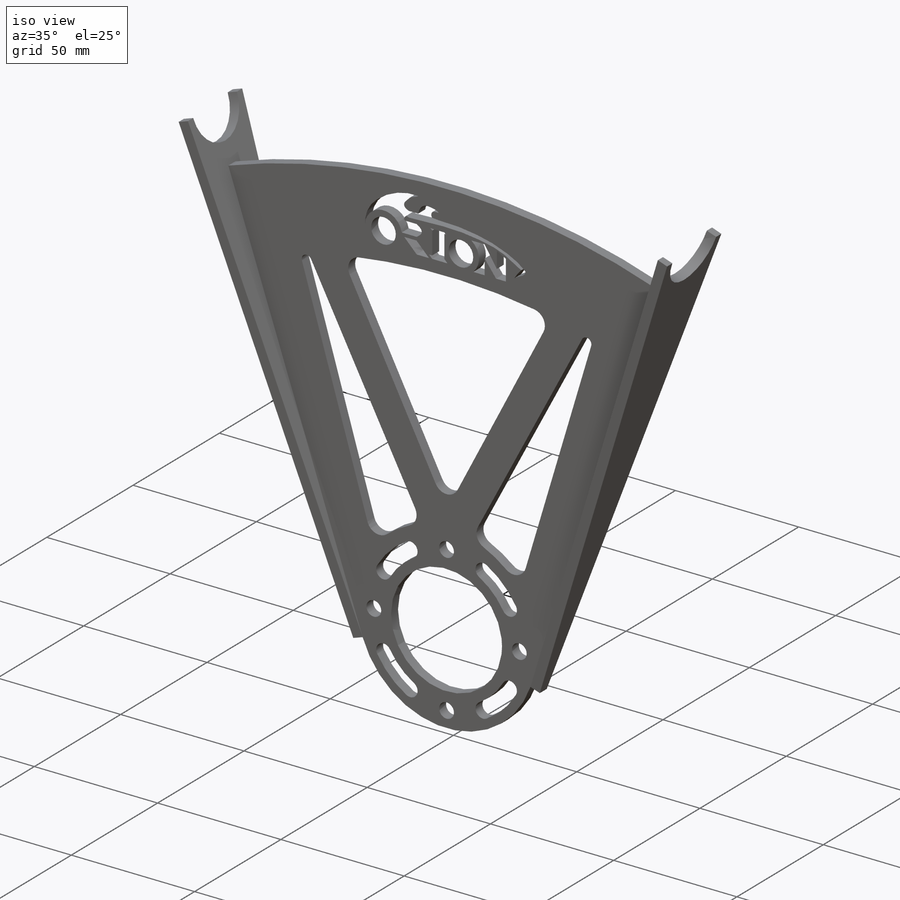
[diagram: iso view]
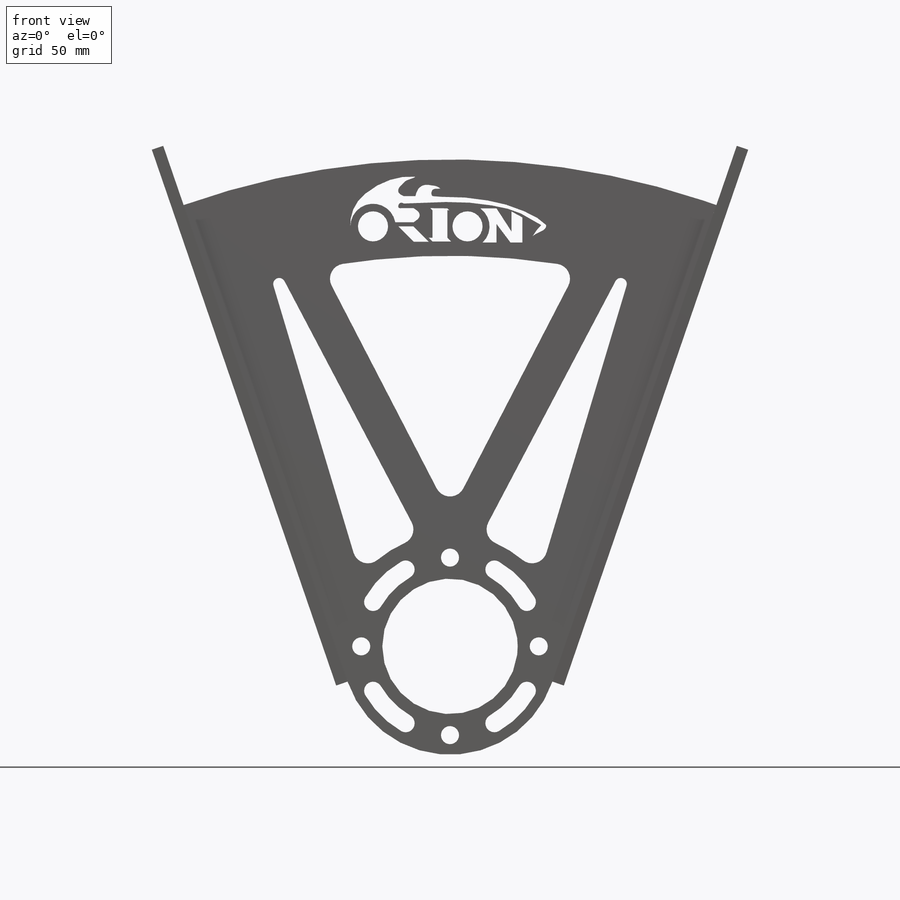
[diagram: front view]
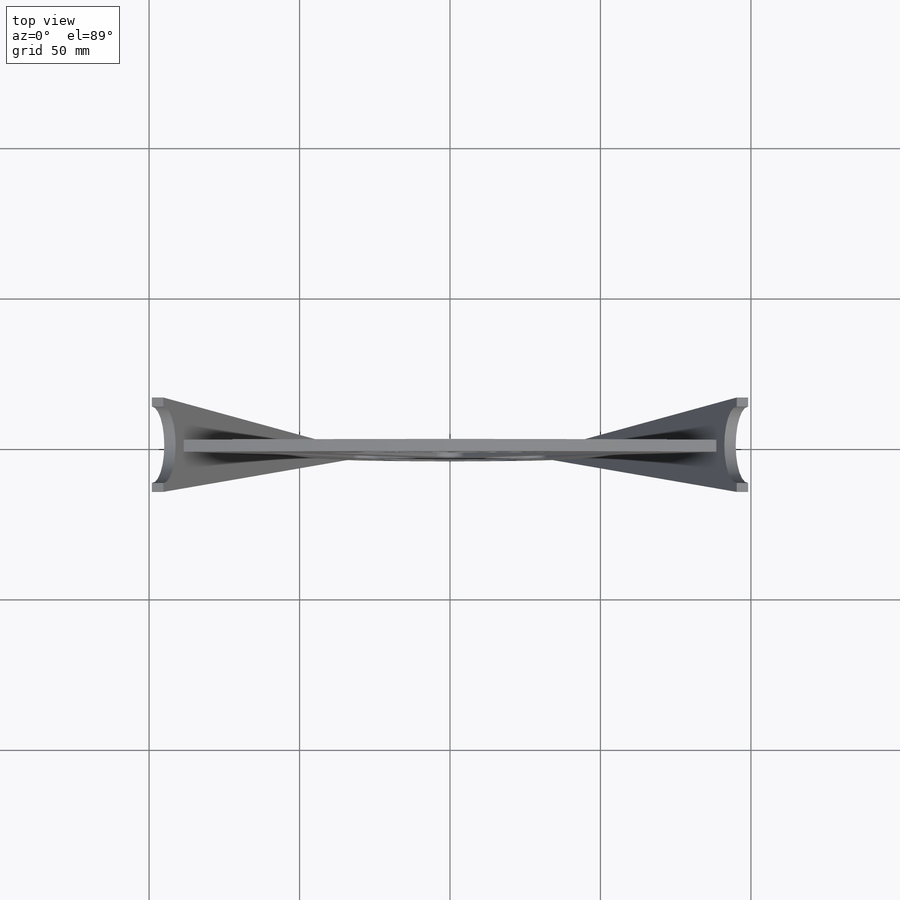
[diagram: top view]
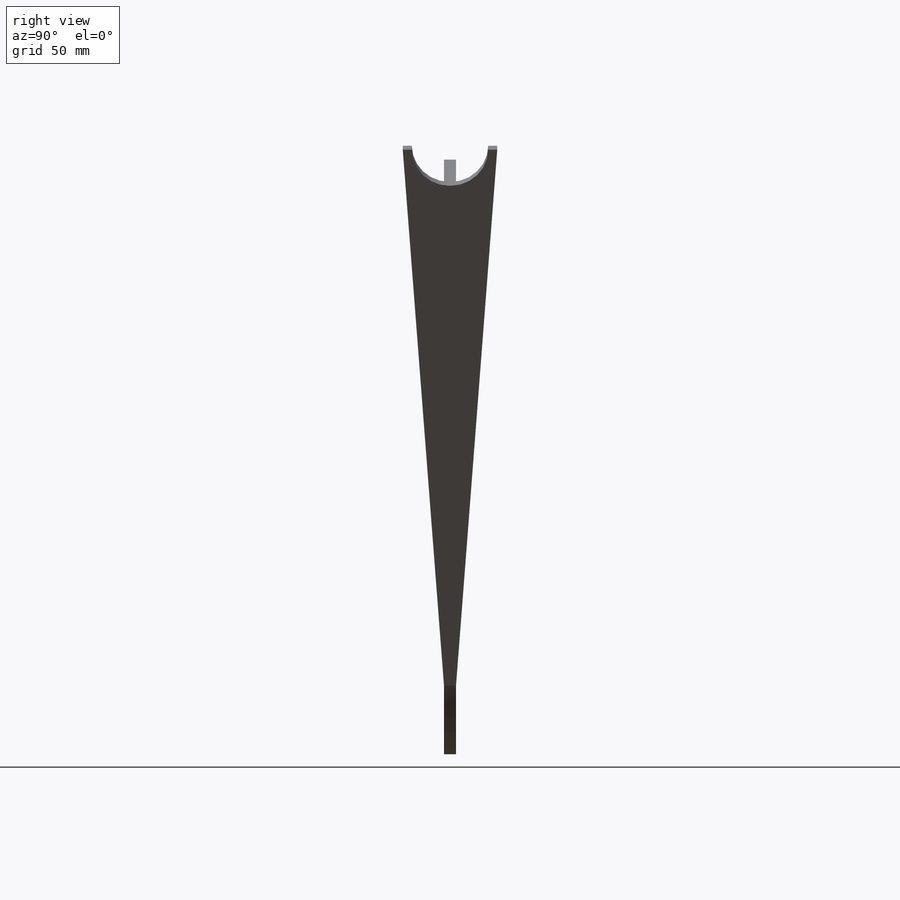
[diagram: right view]
SOLIDWORKS PART (.sldprt)
format: sldprt  version: not decoded by parser v0  size: 528,896 bytes
history: native  units: mm
features: sketch x8, extrude x2, cut_extrude x2, fillet x2, material x1, mirror x1 (+11 scaffold rows collapsed)
feature tree (27):
  scaffold x11  (default folders/planes/origin — collapsed)
  material  "AISI 1020"
  sketch  "Sketch1"  dims[c1.D1=45.0mm c1.D2=6.0mm c1.D4=72.0mm c1.D6=80.0mm c1.D7=36.0mm c1.D10=10.0mm c1.D11=10.0mm c1.D8=10.0mm c1.D13=2.0mm c1.D14=2.0mm c1.D15=5.0mm c1.D5=142.54mm c2.D7=~26.659546mm c2.D8=59.0mm c2.D5=180.0mm c2.D6=50.0mm c3.D7=50.0mm c3.D8=10.0mm c3.D9=30.0mm c3.D10=50.0mm c4.D8=30.0mm c4.D10=12.0mm c4.D11=72.0mm c4.D6=100.0mm c4.D5=180.0mm c5.D6=200.0mm c5.D8=36.0mm c5.D9=20.0mm c5.D10=15.0mm c5.D11=60.0mm c5.D12=15.0mm c5.D13=3.0mm c5.D14=3.0mm c5.D16=12.0]
  extrude  "Boss-Extrude1"  Depth=4mm
  sketch  "Sketch4"  dims[D1=2.0mm D2=4.0mm]
  sketch  "Sketch8"  dims[D1=20.0mm]
  cut_extrude  "Cut-Extrude1"  Depth=10mm
  sketch  "Sketch11"  dims[D1=25.4mm D2=20.83mm D3=3.0mm D4=3.0mm D5=0.0mm]
  extrude  "Boss-Extrude2"  Depth=4mm
  mirror  "Mirror1"
  sketch  "Sketch13"  dims[D1=~2.004167mm]
  sketch  "Sketch14"
  sketch  "Sketch15"
  sketch  "Sketch16"  dims[c1.D1=150.0mm c1.D2=100.0mm c1.D3=100.0mm c2.D1=32.0mm]
  cut_extrude  "Cut-Extrude3"  Depth=4mm
  fillet  "Fillet6"  Radius=5mm
  fillet  "Fillet7"  Radius=5mm
decode coverage: 12 of 15 modeling features carry decoded parameters
note: ~ marks probable driven/reference dimensions
note: suppression state not decoded; provenance and decode notes live in map.json
